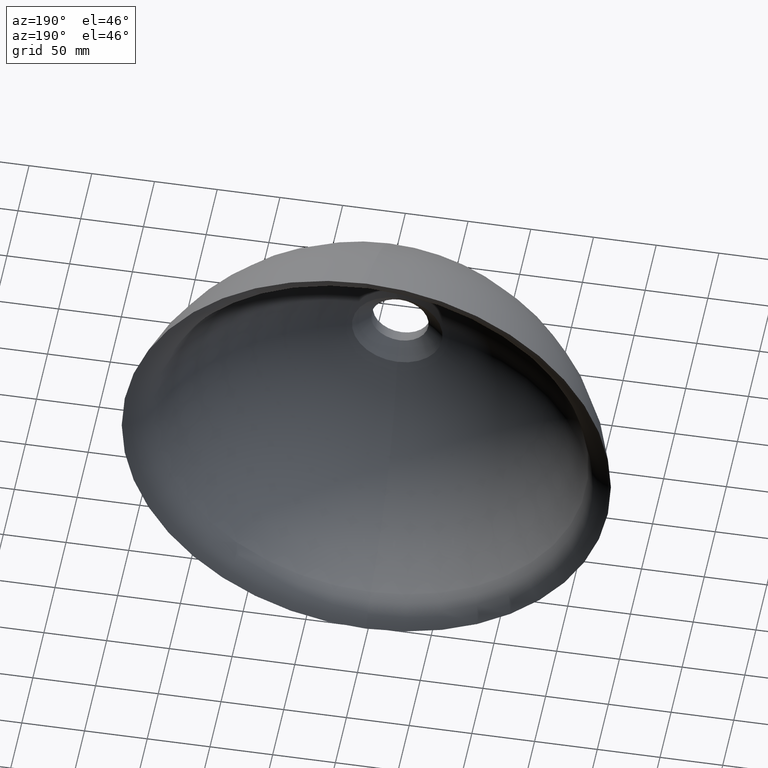
[diagram: clean part render]
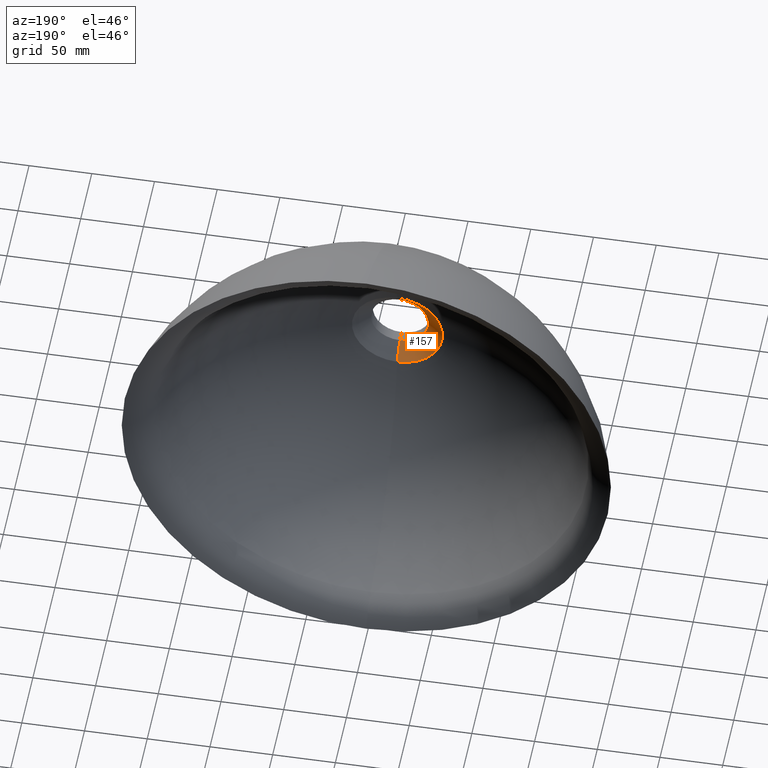
[diagram: same view with one face highlighted and labeled with its STEP entity id]
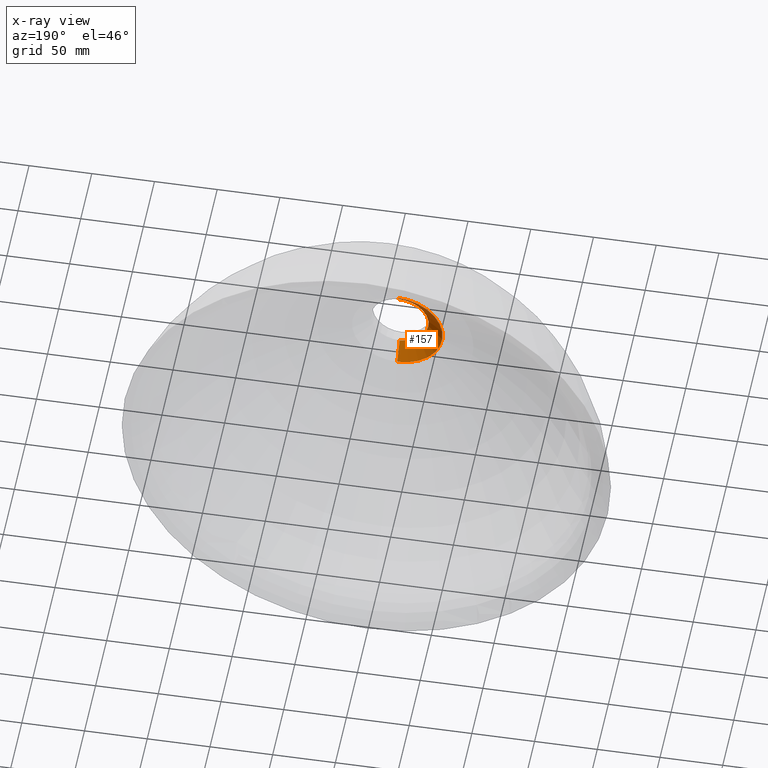
[diagram: x-ray of the same camera — body ghosted, the highlighted face saturated]
A machine part, auxiliary view. The second image highlights one B-rep face of the part: STEP entity #157.
The next image is the same camera in x-ray: the body ghosted, the highlighted face saturated — about 0% of this face is hidden behind the body in this view.
In plain terms, the highlighted conical surface has half-angle 50 deg.
Its self-contained STEP definition (entity closure, byte-faithful):
#8 = DIRECTION ( 'NONE',  ( 0.0000000000000000000, 1.000000000000000000, 0.0000000000000000000 ) ) ;
#14 = CARTESIAN_POINT ( 'NONE',  ( 1.284747968416844600E-014, 20.00000000000000000, 36.10928951853636400 ) ) ;
#16 = VERTEX_POINT ( 'NONE', #233 ) ;
#27 = CIRCLE ( 'NONE', #95, 23.00000000000000000 ) ;
#51 = DIRECTION ( 'NONE',  ( -0.0000000000000000000, -1.000000000000000000, -0.0000000000000000000 ) ) ;
#56 = DIRECTION ( 'NONE',  ( 0.0000000000000000000, 0.0000000000000000000, -1.000000000000000000 ) ) ;
#67 = CARTESIAN_POINT ( 'NONE',  ( 2.816687638038912400E-015, 9.000000000000001800, -23.00000000000000000 ) ) ;
#92 = DIRECTION ( 'NONE',  ( 0.0000000000000000000, 0.0000000000000000000, 1.000000000000000000 ) ) ;
#95 = AXIS2_PLACEMENT_3D ( 'NONE', #272, #51, #56 ) ;
#98 = VECTOR ( 'NONE', #298, 1000.000000000000000 ) ;
#124 = FACE_OUTER_BOUND ( 'NONE', #361, .T. ) ;
#128 = CONICAL_SURFACE ( 'NONE', #227, 23.00000000000000000, 0.8726646259971667700 ) ;
#137 = ORIENTED_EDGE ( 'NONE', *, *, #314, .F. ) ;
#138 = LINE ( 'NONE', #159, #199 ) ;
#142 = EDGE_CURVE ( 'NONE', #394, #223, #27, .T. ) ;
#157 = ADVANCED_FACE ( 'NONE', ( #124 ), #128, .F. ) ;
#159 = CARTESIAN_POINT ( 'NONE',  ( 0.0000000000000000000, 9.000000000000001800, 23.00000000000000000 ) ) ;
#172 = CIRCLE ( 'NONE', #409, 36.10928951853636400 ) ;
#174 = LINE ( 'NONE', #67, #98 ) ;
#177 = VERTEX_POINT ( 'NONE', #14 ) ;
#199 = VECTOR ( 'NONE', #331, 1000.000000000000000 ) ;
#209 = EDGE_CURVE ( 'NONE', #394, #177, #138, .T. ) ;
#215 = DIRECTION ( 'NONE',  ( -0.0000000000000000000, -1.000000000000000000, -0.0000000000000000000 ) ) ;
#223 = VERTEX_POINT ( 'NONE', #337 ) ;
#227 = AXIS2_PLACEMENT_3D ( 'NONE', #356, #8, #92 ) ;
#233 = CARTESIAN_POINT ( 'NONE',  ( 0.0000000000000000000, 20.00000000000000000, -36.10928951853636400 ) ) ;
#272 = CARTESIAN_POINT ( 'NONE',  ( 0.0000000000000000000, 9.000000000000001800, 0.0000000000000000000 ) ) ;
#284 = CARTESIAN_POINT ( 'NONE',  ( 0.0000000000000000000, 9.000000000000001800, 23.00000000000000000 ) ) ;
#293 = DIRECTION ( 'NONE',  ( 0.0000000000000000000, 0.0000000000000000000, -1.000000000000000000 ) ) ;
#298 = DIRECTION ( 'NONE',  ( 9.381338752702746800E-017, 0.6427876096865378100, -0.7660444431189793500 ) ) ;
#314 = EDGE_CURVE ( 'NONE', #177, #16, #172, .T. ) ;
#323 = ORIENTED_EDGE ( 'NONE', *, *, #424, .T. ) ;
#331 = DIRECTION ( 'NONE',  ( 0.0000000000000000000, 0.6427876096865378100, 0.7660444431189793500 ) ) ;
#337 = CARTESIAN_POINT ( 'NONE',  ( 3.619400110437487600E-015, 9.000000000000001800, -23.00000000000000000 ) ) ;
#350 = ORIENTED_EDGE ( 'NONE', *, *, #142, .T. ) ;
#356 = CARTESIAN_POINT ( 'NONE',  ( 0.0000000000000000000, 9.000000000000001800, 0.0000000000000000000 ) ) ;
#361 = EDGE_LOOP ( 'NONE', ( #350, #323, #137, #372 ) ) ;
#372 = ORIENTED_EDGE ( 'NONE', *, *, #209, .F. ) ;
#394 = VERTEX_POINT ( 'NONE', #284 ) ;
#409 = AXIS2_PLACEMENT_3D ( 'NONE', #437, #215, #293 ) ;
#424 = EDGE_CURVE ( 'NONE', #223, #16, #174, .T. ) ;
#437 = CARTESIAN_POINT ( 'NONE',  ( 0.0000000000000000000, 20.00000000000000000, 0.0000000000000000000 ) ) ;